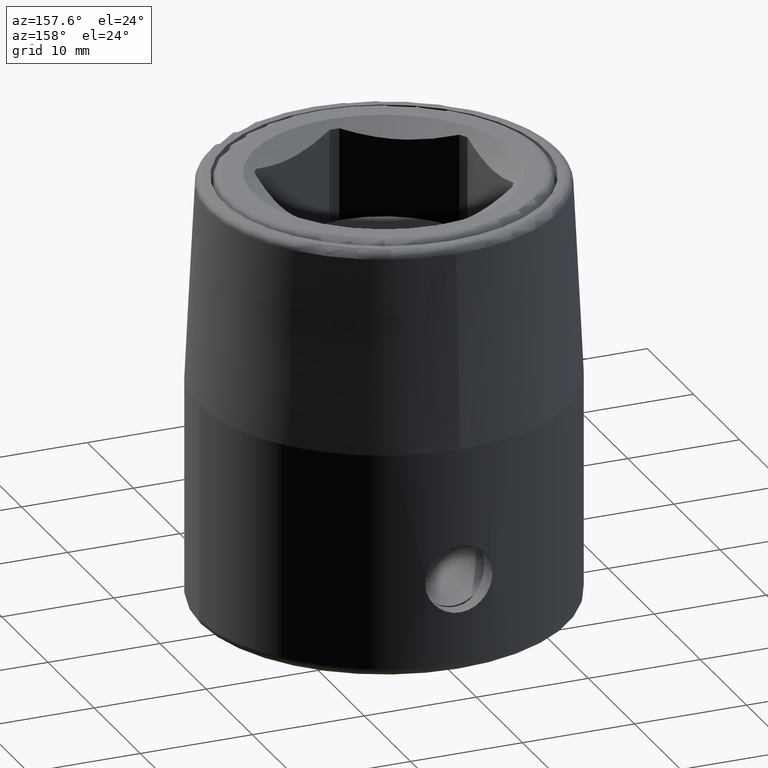
[diagram: clean part render]
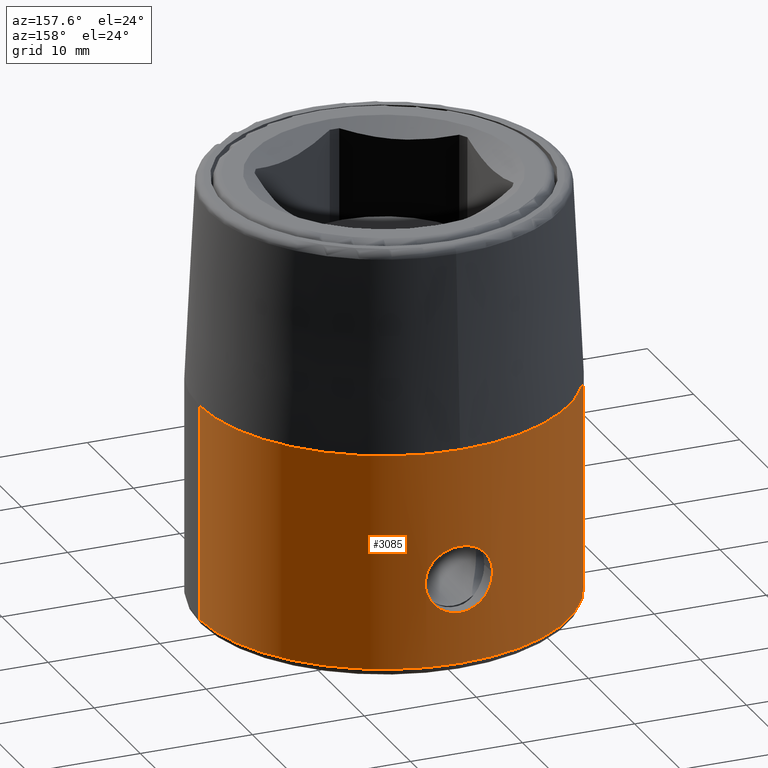
[diagram: same view with one face highlighted and labeled with its STEP entity id]
A machine part, auxiliary view. The second image highlights one B-rep face of the part: STEP entity #3085.
In plain terms, the highlighted cylindrical surface (partial cylindrical patch) has radius 16.5 mm, axis along (0, 0, 1).
Its self-contained STEP definition (entity closure, byte-faithful):
#2648=CARTESIAN_POINT('',(3.E0,-1.622498073959E1,8.E0));
#2649=CARTESIAN_POINT('',(3.E0,-1.622498073959E1,7.810496616346E0));
#2650=CARTESIAN_POINT('',(2.966086751768E0,-1.623133169846E1,7.433479729665E0));
#2651=CARTESIAN_POINT('',(2.789771069296E0,-1.626299636665E1,6.841711963641E0));
#2652=CARTESIAN_POINT('',(2.508295262976E0,-1.630934546442E1,6.320152147957E0));
#2653=CARTESIAN_POINT('',(2.136868371401E0,-1.636281082461E1,5.867496088108E0));
#2654=CARTESIAN_POINT('',(1.686607981651E0,-1.641594527285E1,5.496412541477E0));
#2655=CARTESIAN_POINT('',(1.164608779540E0,-1.646218675025E1,5.212345947957E0));
#2656=CARTESIAN_POINT('',(5.632547900052E-1,-1.649398035930E1,
5.032668831861E0));
#2657=CARTESIAN_POINT('',(-1.204982798270E-2,-1.650329890646E1,
4.982080203645E0));
#2658=CARTESIAN_POINT('',(-5.998352642326E-1,-1.649278771380E1,
5.039210010559E0));
#2659=CARTESIAN_POINT('',(-1.197114596937E0,-1.645976417968E1,
5.226491916933E0));
#2660=CARTESIAN_POINT('',(-1.712987422541E0,-1.641313927351E1,
5.514816061112E0));
#2661=CARTESIAN_POINT('',(-2.153384339113E0,-1.636056860989E1,
5.884879657056E0));
#2662=CARTESIAN_POINT('',(-2.518223614531E0,-1.630777917869E1,
6.335651880573E0));
#2663=CARTESIAN_POINT('',(-2.794231306728E0,-1.626220716927E1,
6.853627993381E0));
#2664=CARTESIAN_POINT('',(-2.966850652816E0,-1.623118734859E1,
7.439713323709E0));
#2665=CARTESIAN_POINT('',(-3.E0,-1.622498073959E1,7.812681096457E0));
#2666=CARTESIAN_POINT('',(-3.E0,-1.622498073959E1,8.E0));
#2671=CARTESIAN_POINT('',(-3.E0,-1.622498073959E1,8.E0));
#2672=CARTESIAN_POINT('',(-3.E0,-1.622498073959E1,8.184667329411E0));
#2673=CARTESIAN_POINT('',(-2.967756567882E0,-1.623101698073E1,
8.552718803596E0));
#2674=CARTESIAN_POINT('',(-2.799676894922E0,-1.626123933856E1,
9.131569428414E0));
#2675=CARTESIAN_POINT('',(-2.530270767711E0,-1.630588383123E1,
9.645514109465E0));
#2676=CARTESIAN_POINT('',(-2.172440158383E0,-1.635793232082E1,
1.009429491299E1));
#2677=CARTESIAN_POINT('',(-1.749331271196E0,-1.640919341465E1,
1.045911828132E1));
#2678=CARTESIAN_POINT('',(-1.231372837602E0,-1.645739570778E1,
1.075992039437E1));
#2679=CARTESIAN_POINT('',(-6.106535351246E-1,-1.649278829756E1,
1.096090357626E1));
#2680=CARTESIAN_POINT('',(2.064206978294E-2,-1.650401940475E1,
1.102181837454E1));
#2681=CARTESIAN_POINT('',(6.557899196990E-1,-1.649105171733E1,
1.095136990653E1));
#2682=CARTESIAN_POINT('',(1.268198777039E0,-1.645445187351E1,1.074245589311E1));
#2683=CARTESIAN_POINT('',(1.774101277740E0,-1.640643696E1,1.044064315998E1));
#2684=CARTESIAN_POINT('',(2.188619200663E0,-1.635571589885E1,1.007679173882E1));
#2685=CARTESIAN_POINT('',(2.539457342242E0,-1.630441663798E1,9.630657083569E0));
#2686=CARTESIAN_POINT('',(2.803974316082E0,-1.626048022663E1,9.119874468386E0));
#2687=CARTESIAN_POINT('',(2.968444683905E0,-1.623088591103E1,8.546761543183E0));
#2688=CARTESIAN_POINT('',(3.E0,-1.622498073959E1,8.182581106418E0));
#2689=CARTESIAN_POINT('',(3.E0,-1.622498073959E1,8.E0));
#2694=CARTESIAN_POINT('',(0.E0,0.E0,4.E-1));
#2695=DIRECTION('',(0.E0,0.E0,-1.E0));
#2696=DIRECTION('',(1.E0,0.E0,0.E0));
#2697=AXIS2_PLACEMENT_3D('',#2694,#2695,#2696);
#2702=DIRECTION('',(0.E0,3.458378489463E-14,1.E0));
#2703=VECTOR('',#2702,1.93E1);
#2704=CARTESIAN_POINT('',(-1.65E1,-6.651096033780E-13,4.E-1));
#2705=LINE('',#2704,#2703);
#2709=CARTESIAN_POINT('',(0.E0,0.E0,1.97E1));
#2710=DIRECTION('',(0.E0,0.E0,1.E0));
#2711=DIRECTION('',(-1.E0,0.E0,0.E0));
#2712=AXIS2_PLACEMENT_3D('',#2709,#2710,#2711);
#2717=CARTESIAN_POINT('',(0.E0,0.E0,1.97E1));
#2718=DIRECTION('',(0.E0,0.E0,1.E0));
#2719=DIRECTION('',(0.E0,-1.E0,0.E0));
#2720=AXIS2_PLACEMENT_3D('',#2717,#2718,#2719);
#2749=DIRECTION('',(0.E0,-3.455703192378E-14,1.E0));
#2750=VECTOR('',#2749,1.93E1);
#2751=CARTESIAN_POINT('',(1.65E1,6.645766809977E-13,4.E-1));
#2752=LINE('',#2751,#2750);
#2874=CARTESIAN_POINT('',(3.E0,-1.622498073959E1,8.E0));
#2875=VERTEX_POINT('',#2874);
#2876=CARTESIAN_POINT('',(-3.E0,-1.622498073959E1,8.E0));
#2877=VERTEX_POINT('',#2876);
#2890=CARTESIAN_POINT('',(-1.65E1,0.E0,4.E-1));
#2891=CARTESIAN_POINT('',(1.65E1,0.E0,4.E-1));
#2892=VERTEX_POINT('',#2890);
#2893=VERTEX_POINT('',#2891);
#2898=CARTESIAN_POINT('',(1.65E1,0.E0,1.97E1));
#2900=VERTEX_POINT('',#2898);
#2902=CARTESIAN_POINT('',(-1.65E1,0.E0,1.97E1));
#2903=VERTEX_POINT('',#2902);
#2904=CARTESIAN_POINT('',(0.E0,-1.65E1,1.97E1));
#2905=VERTEX_POINT('',#2904);
#3064=CARTESIAN_POINT('',(0.E0,0.E0,-3.E-1));
#3065=DIRECTION('',(0.E0,0.E0,1.E0));
#3066=DIRECTION('',(1.E0,0.E0,0.E0));
#3067=AXIS2_PLACEMENT_3D('',#3064,#3065,#3066);
#3068=CYLINDRICAL_SURFACE('',#3067,1.65E1);
#3070=ORIENTED_EDGE('',*,*,#3069,.F.);
#3072=ORIENTED_EDGE('',*,*,#3071,.T.);
#3074=ORIENTED_EDGE('',*,*,#3073,.T.);
#3076=ORIENTED_EDGE('',*,*,#3075,.T.);
#3078=ORIENTED_EDGE('',*,*,#3077,.T.);
#3079=EDGE_LOOP('',(#3070,#3072,#3074,#3076,#3078));
#3080=FACE_OUTER_BOUND('',#3079,.F.);
#3081=ORIENTED_EDGE('',*,*,#3040,.F.);
#3082=ORIENTED_EDGE('',*,*,#3058,.F.);
#3083=EDGE_LOOP('',(#3081,#3082));
#3084=FACE_BOUND('',#3083,.F.);
#3085=ADVANCED_FACE('',(#3080,#3084),#3068,.T.);
#2667=B_SPLINE_CURVE_WITH_KNOTS('',3,(#2648,#2649,#2650,#2651,#2652,#2653,#2654,
#2655,#2656,#2657,#2658,#2659,#2660,#2661,#2662,#2663,#2664,#2665,#2666),
.UNSPECIFIED.,.F.,.F.,(4,1,1,1,1,1,1,1,1,1,1,1,1,1,1,1,4),(0.E0,6.25E-2,1.25E-1,
1.875E-1,2.5E-1,3.125E-1,3.75E-1,4.375E-1,5.E-1,5.625E-1,6.25E-1,6.875E-1,
7.5E-1,8.125E-1,8.75E-1,9.375E-1,1.E0),.UNSPECIFIED.);
#2690=B_SPLINE_CURVE_WITH_KNOTS('',3,(#2671,#2672,#2673,#2674,#2675,#2676,#2677,
#2678,#2679,#2680,#2681,#2682,#2683,#2684,#2685,#2686,#2687,#2688,#2689),
.UNSPECIFIED.,.F.,.F.,(4,1,1,1,1,1,1,1,1,1,1,1,1,1,1,1,4),(0.E0,6.25E-2,1.25E-1,
1.875E-1,2.5E-1,3.125E-1,3.75E-1,4.375E-1,5.E-1,5.625E-1,6.25E-1,6.875E-1,
7.5E-1,8.125E-1,8.75E-1,9.375E-1,1.E0),.UNSPECIFIED.);
#2698=CIRCLE('',#2697,1.65E1);
#2713=CIRCLE('',#2712,1.65E1);
#2721=CIRCLE('',#2720,1.65E1);
#3040=EDGE_CURVE('',#2875,#2877,#2667,.T.);
#3058=EDGE_CURVE('',#2877,#2875,#2690,.T.);
#3069=EDGE_CURVE('',#2893,#2900,#2752,.T.);
#3071=EDGE_CURVE('',#2893,#2892,#2698,.T.);
#3073=EDGE_CURVE('',#2892,#2903,#2705,.T.);
#3075=EDGE_CURVE('',#2903,#2905,#2713,.T.);
#3077=EDGE_CURVE('',#2905,#2900,#2721,.T.);